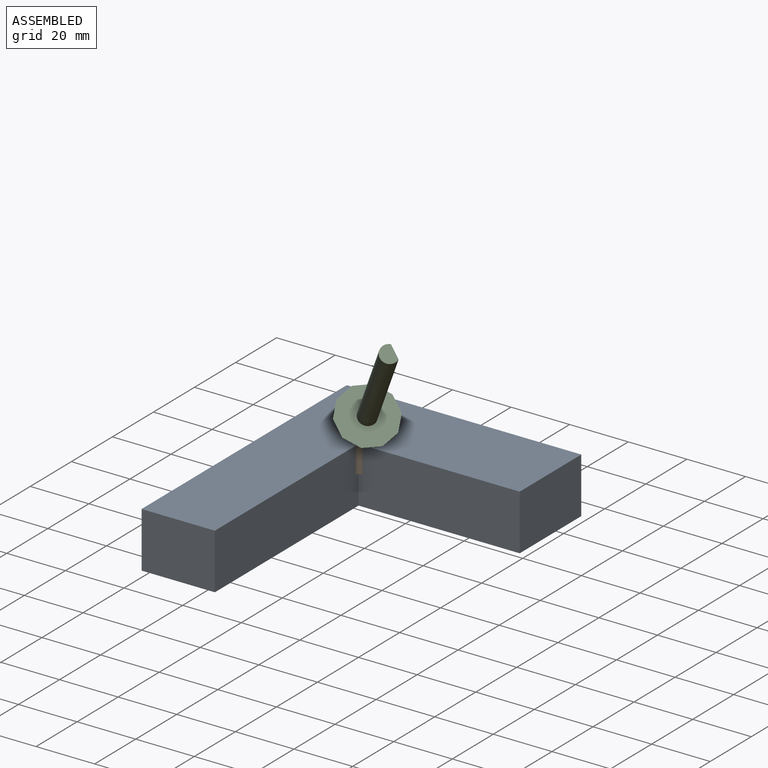
[diagram: assembled view]
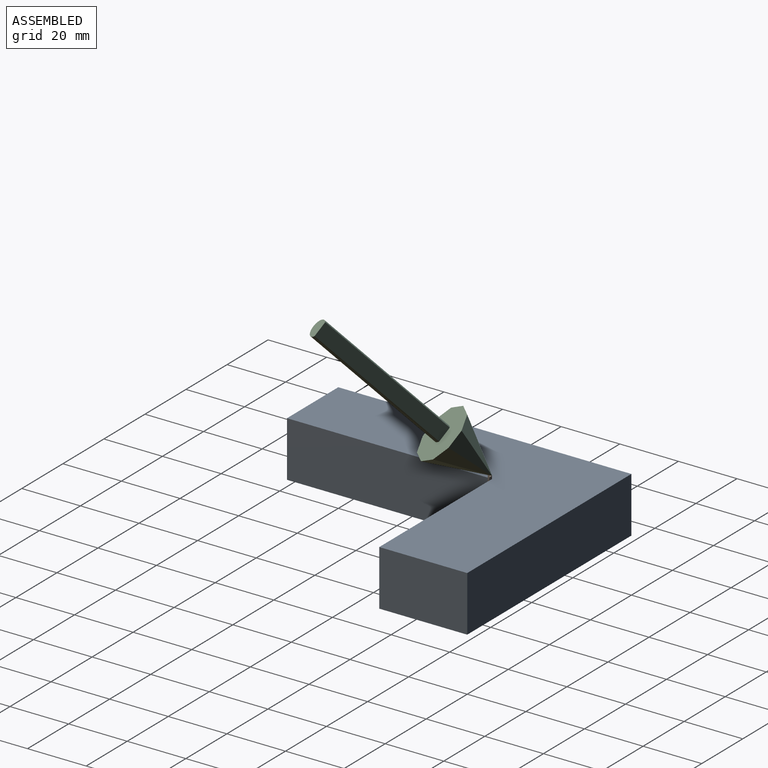
[diagram: assembled view, second angle]
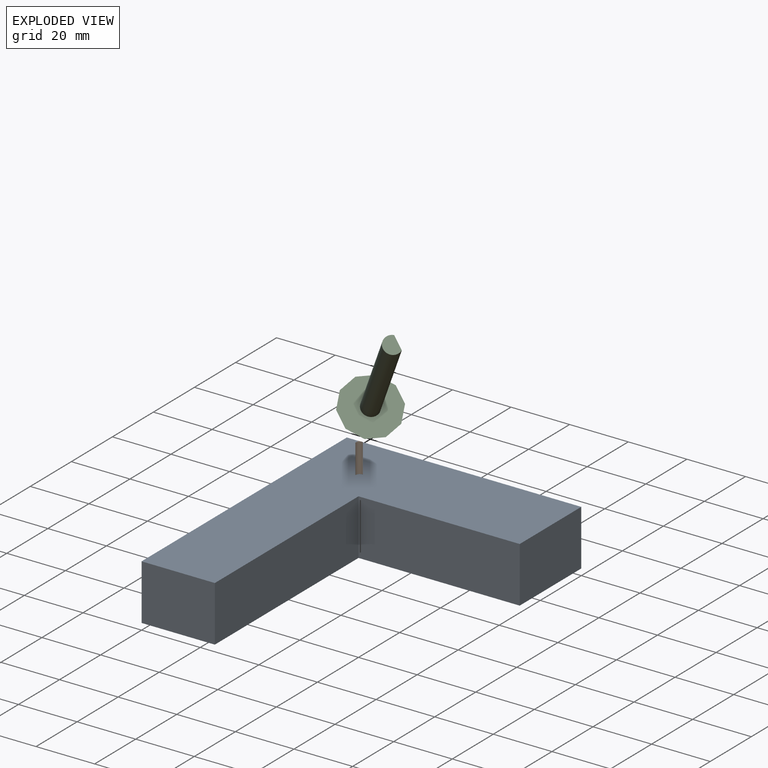
[diagram: exploded view]
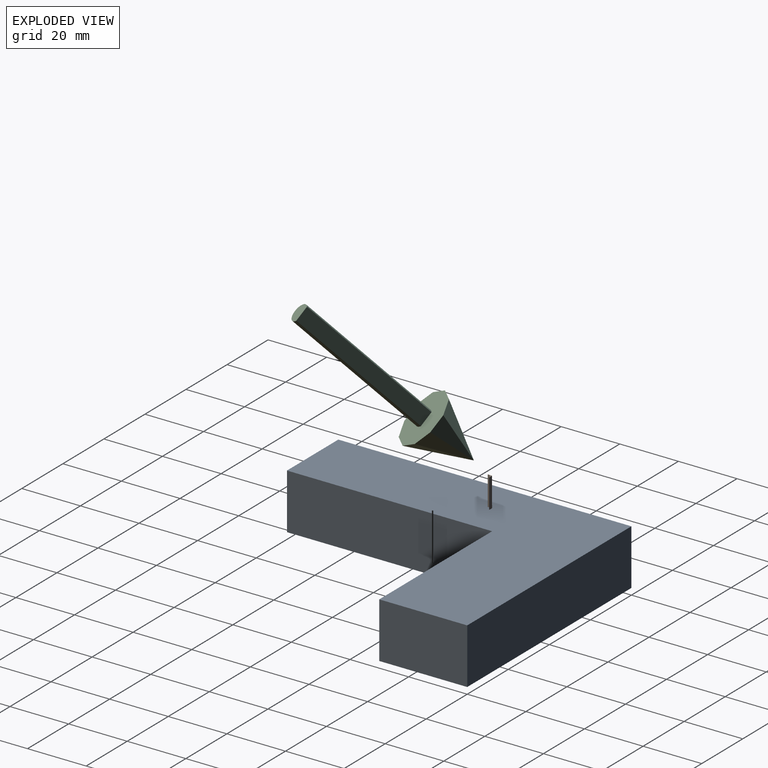
[diagram: exploded view, second angle]
ASSEMBLY  parts=3 mates=2
PART A: 8 faces, bbox 80x100x19 mm
  f0: plane 70x19mm, normal (1,0,0), area 1330mm2, adj f1,f5,f6,f7
  f1: plane 55x19mm, normal (0,-1,0), area 1045mm2, adj f0,f2,f6,f7
  f2: plane 30x19mm, normal (1,0,0), area 570mm2, adj f1,f3,f6,f7
  f3: plane 80x19mm, normal (0,1,0), area 1520mm2, adj f2,f4,f6,f7
  f4: plane 100x19mm, normal (-1,0,0), area 1900mm2, adj f3,f5,f6,f7
  f5: plane 25x19mm, normal (0,-1,0), area 475mm2, adj f0,f4,f6,f7
  f6: plane 100x80mm, normal (0,0,-1), area 4150mm2, adj f0,f1,f2,f3,f4,f5
  f7: plane 100x80mm, normal (0,0,1), area 4150mm2, adj f0,f1,f2,f3,f4,f5
PART B: 12 faces, bbox 1.5x1.5x10 mm
  f0: plane 9x0.05mm, normal (-1,0,0), area 0.5mm2, adj f1,f3,f6,f7
  f1: plane 9x0.05mm, normal (0,1,0), area 0.4mm2, adj f0,f4,f6,f7
  f2: cylinder r=1.5mm len=10mm, axis (0,0,1), area 23.6mm2, adj f3,f4,f5,f6
  f3: plane 10x1.5mm, normal (0,1,0), area 14.5mm2, adj f0,f2,f4,f5,f6,f7
  f4: plane 10x1.5mm, normal (-1,0,0), area 14.5mm2, adj f1,f2,f3,f5,f6,f7
  f5: plane 1.5x1.5mm, normal (0,0,-1), area 0.5mm2, adj f2,f3,f4
  f6: plane 1.5x1.5mm, normal (0,0,1), area 0.5mm2, adj f0,f1,f2,f3,f4,f8,f9,f10
  f7: plane 0.05x0.05mm, normal (0,0,1), area 0mm2, adj f0,f1,f3,f4
  f8: plane 0.05x0.02mm, normal (-0.87,-0.29,0.41), area 0mm2, adj f6,f9,f11
  f9: plane 0.05x0.02mm, normal (0,0.82,0.58), area 0mm2, adj f6,f8,f10,f11
  f10: plane 0.01x0mm, normal (0.87,0.29,-0.41), area 0mm2, adj f6,f9,f11
  f11: plane 0.04x0.04mm, normal (0.5,-0.5,0.71), area 0mm2, adj f6,f8,f9,f10
PART C: 15 faces, bbox 50.7x19.6x51.7 mm
  f0: plane 19.61x13.19mm, normal (0.71,0,0.71), area 258.8mm2, adj f2,f3,f4,f5,f6,f7,f8,f9
  f1: plane 0.1x0.07mm, normal (-0.71,0,-0.71), area 0mm2, adj f2,f3,f4,f5,f6,f7,f8,f9
  f2: plane 20.72x10.1mm, normal (-0.82,0.53,0.22), area 67.2mm2, adj f0,f1,f3,f11
  f3: plane 18.22x14.16mm, normal (-0.5,0.86,-0.1), area 67.2mm2, adj f0,f1,f2,f4
  f4: plane 18.22x14.16mm, normal (-0.1,0.86,-0.5), area 67.2mm2, adj f0,f1,f3,f5
  f5: plane 20.72x10.1mm, normal (0.22,0.53,-0.82), area 67.2mm2, adj f0,f1,f4,f6
  f6: plane 20.7x7.58mm, normal (0.34,0,-0.94), area 67.2mm2, adj f0,f1,f5,f7
  f7: plane 20.72x10.1mm, normal (0.22,-0.53,-0.82), area 67.2mm2, adj f0,f1,f6,f8
  f8: plane 18.22x14.16mm, normal (-0.1,-0.86,-0.5), area 67.2mm2, adj f0,f1,f7,f9
  f9: plane 18.22x14.16mm, normal (-0.5,-0.86,-0.1), area 67.2mm2, adj f0,f1,f8,f10
  f10: plane 20.72x10.1mm, normal (-0.82,-0.53,0.22), area 67.2mm2, adj f0,f1,f9,f11
  f11: plane 20.7x7.58mm, normal (-0.94,0,0.34), area 67.2mm2, adj f0,f1,f2,f10
  f12: plane 35.36x35.36mm, normal (0.71,0,-0.71), area 246.6mm2, adj f0,f13,f14
  f13: cylinder r=3mm len=38.68mm, axis (-0.71,0,-0.71), area 653mm2, adj f0,f12,f14
  f14: plane 6x3.33mm, normal (0.71,0,0.71), area 23.8mm2, adj f12,f13
PLACE A at identity fixed
PLACE B t=(0,0,1)mm
PLACE C rot(axis=(0.81,-0.34,0.47),81.5deg) t=(25.05,69.95,1)mm
MATE revolute B.f11 <-> C.f13  axis (0.5,-0.5,0.71) through (25.05,69.95,1)mm
MATE slider B.f5 <-> A.f7  axis (0,0,-1) through (25,70,-9)mm
